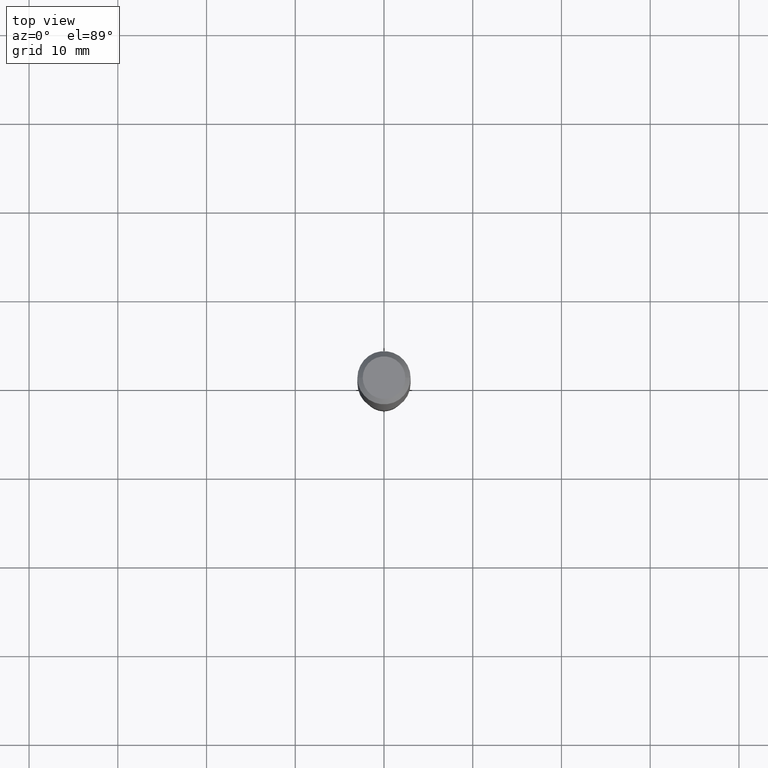
[diagram: clean part render]
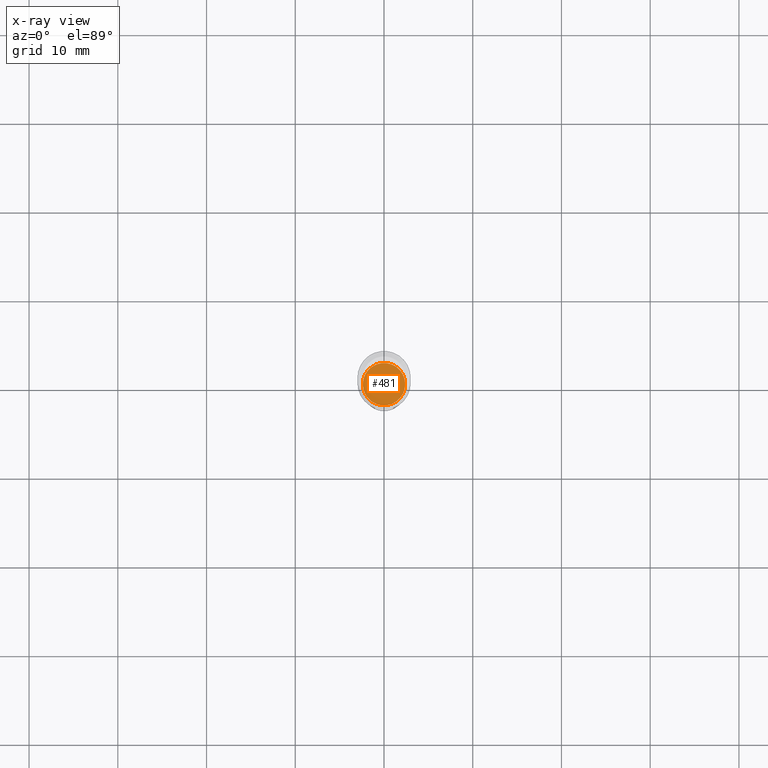
[diagram: x-ray — body ghosted, one internal face saturated and labeled with its STEP entity id]
A machine part, top view, then the same camera in x-ray: the body is ghosted and one INTERNAL B-rep face — a face not visible from any outside direction — is saturated and labeled: STEP entity #481.
In plain terms, the highlighted planar face has unit normal (-0, 0, 1).
Its self-contained STEP definition (entity closure, byte-faithful):
#1 = ORIENTED_EDGE ( 'NONE', *, *, #38, .F. ) ;
#6 = FACE_OUTER_BOUND ( 'NONE', #372, .T. ) ;
#11 = AXIS2_PLACEMENT_3D ( 'NONE', #34, #445, #262 ) ;
#34 = CARTESIAN_POINT ( 'NONE',  ( 4.120614938421955681E-29, -5.883146055950701318E-15, -1.685000000000000275 ) ) ;
#38 = EDGE_CURVE ( 'NONE', #441, #162, #421, .T. ) ;
#48 = ORIENTED_EDGE ( 'NONE', *, *, #293, .F. ) ;
#76 = CARTESIAN_POINT ( 'NONE',  ( 0.09399999999999998634, -6.539544547653209537E-15, -1.685000000000000275 ) ) ;
#113 = DIRECTION ( 'NONE',  ( 1.000000000000000000, -6.982962677686265922E-15, 4.876176775795935793E-29 ) ) ;
#145 = DIRECTION ( 'NONE',  ( -2.445468806185136597E-29, 3.491481338843145583E-15, 1.000000000000000000 ) ) ;
#158 = DIRECTION ( 'NONE',  ( -2.438088387897960049E-29, 3.491481338843145188E-15, 1.000000000000000000 ) ) ;
#162 = VERTEX_POINT ( 'NONE', #458 ) ;
#172 = AXIS2_PLACEMENT_3D ( 'NONE', #403, #145, #408 ) ;
#262 = DIRECTION ( 'NONE',  ( 1.000000000000000000, -6.982962677686261977E-15, 0.000000000000000000 ) ) ;
#293 = EDGE_CURVE ( 'NONE', #162, #441, #324, .T. ) ;
#324 = CIRCLE ( 'NONE', #11, 0.09399999999999998634 ) ;
#359 = AXIS2_PLACEMENT_3D ( 'NONE', #384, #158, #113 ) ;
#372 = EDGE_LOOP ( 'NONE', ( #1, #48 ) ) ;
#384 = CARTESIAN_POINT ( 'NONE',  ( 4.120614938421955681E-29, -5.883146055950701318E-15, -1.685000000000000275 ) ) ;
#403 = CARTESIAN_POINT ( 'NONE',  ( 4.120614938421955681E-29, -5.883146055950701318E-15, -1.685000000000000275 ) ) ;
#408 = DIRECTION ( 'NONE',  ( 1.000000000000000000, -6.982962677686261977E-15, 0.000000000000000000 ) ) ;
#421 = CIRCLE ( 'NONE', #172, 0.09399999999999998634 ) ;
#426 = PLANE ( 'NONE',  #359 ) ;
#441 = VERTEX_POINT ( 'NONE', #76 ) ;
#445 = DIRECTION ( 'NONE',  ( -2.445468806185136597E-29, 3.491481338843145583E-15, 1.000000000000000000 ) ) ;
#458 = CARTESIAN_POINT ( 'NONE',  ( -0.09399999999999998634, -5.212586657162095349E-15, -1.685000000000000275 ) ) ;
#481 = ADVANCED_FACE ( 'NONE', ( #6 ), #426, .F. ) ;